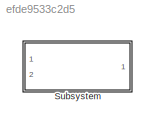
MODEL slx_efde9533c2d5
KIND library
CONFIG AbsTol = auto
CONFIG EnableMultiTasking = off
CONFIG FixedStep = auto
CONFIG MaxStep = auto
CONFIG MinStep = auto
CONFIG RelTol = 1e-3
CONFIG SampleTimeConstraint = Unconstrained
CONFIG Solver = VariableStepAuto
CONFIG SolverName = VariableStepAuto
CONFIG StartTime = 0.0
CONFIG StopTime = 10.0
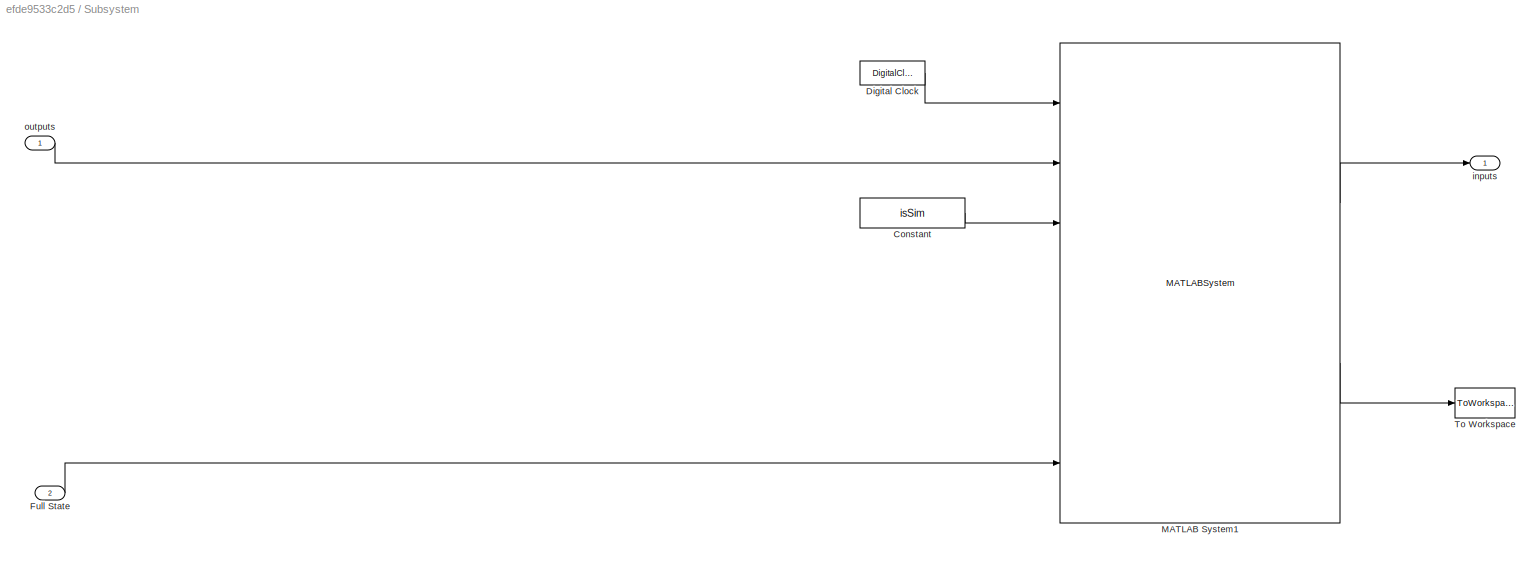
BLOCK [SubSystem] Subsystem
  Ports = [2, 1]
  RequestExecContextInheritance = off
  Variant = off
BLOCK [Constant] Subsystem/Constant
  LockScale = on
  OutDataTypeStr = int8
  Value = isSim
BLOCK [DigitalClock] Subsystem/Digital Clock
  SampleTime = UserParams.SampleTime
BLOCK [Inport] Subsystem/Full State
  IconDisplay = Port number
  Port = 2
BLOCK [MATLABSystem] Subsystem/MATLAB System1
  MaskDisplay = disp('Cassie_Controller_1');\nport_label('output',1,'userInputs');\nport_label('output',2,'Data');
  MaskType = Cassie_Controller_1
  Ports = [7, 2]
  SimulateUsing = Code generation
  System = Cassie_Controller_1
BLOCK [ToWorkspace] Subsystem/To Workspace
  FixptAsFi = on
  MaxDataPoints = inf
  Ports = [1]
  SampleTime = -1
  Save2DSignal = 3-D array (concatenate along third dimension)
  SaveFormat = Timeseries
  VariableName = Data
BLOCK [Outport] Subsystem/inputs 
  IconDisplay = Port number
BLOCK [Inport] Subsystem/outputs
  IconDisplay = Port number
  OutDataTypeStr = Bus: CassieOutBus
LINE Subsystem/Constant:1 -> Subsystem/MATLAB System1:3
LINE Subsystem/Digital Clock:1 -> Subsystem/MATLAB System1:1
LINE Subsystem/Full State:1 -> Subsystem/MATLAB System1:7
LINE Subsystem/MATLAB System1:1 -> Subsystem/inputs :1
LINE Subsystem/MATLAB System1:2 -> Subsystem/To Workspace:1
LINE Subsystem/outputs:1 -> Subsystem/MATLAB System1:2
